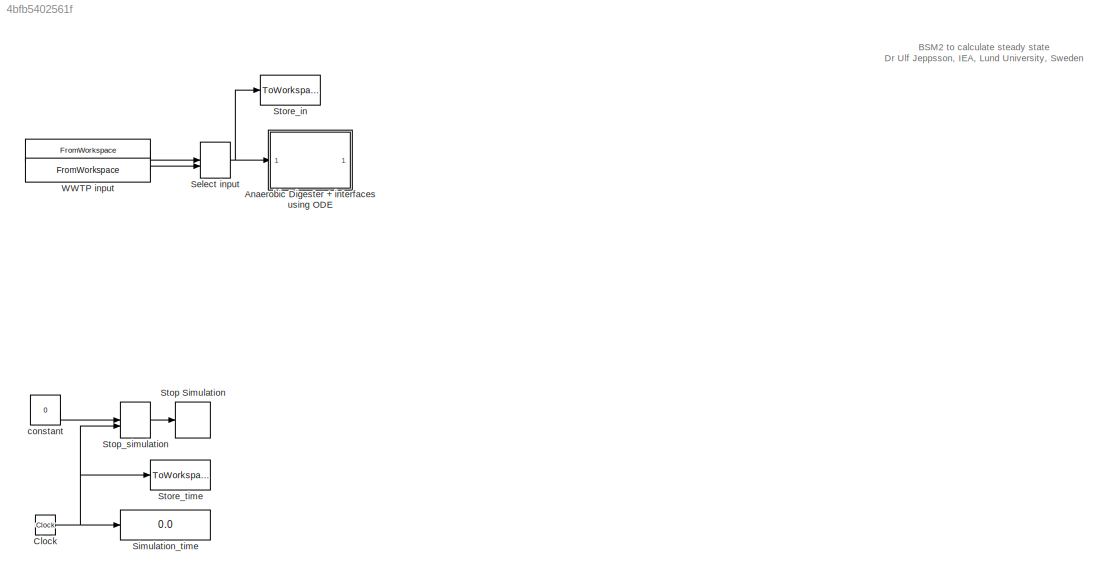
MODEL slx_4bfb5402561f
KIND model
CONFIG AbsTol = 1e-8
CONFIG EnableMultiTasking = off
CONFIG FixedStep = 0.01
CONFIG MaxStep = auto
CONFIG MinStep = auto
CONFIG RelTol = 1e-5
CONFIG SampleTimeConstraint = Unconstrained
CONFIG SolverName = ode15s
CONFIG StartTime = 0.0
CONFIG StopTime = 200
BLOCK [FromWorkspace]  
  OutputAfterFinalValue = Holding final value
  SampleTime = -1
  VariableName = CONSTINFLUENT_ADM1_TEST
  ZeroCross = off
BLOCK [Constant]  constant
  Value = 0
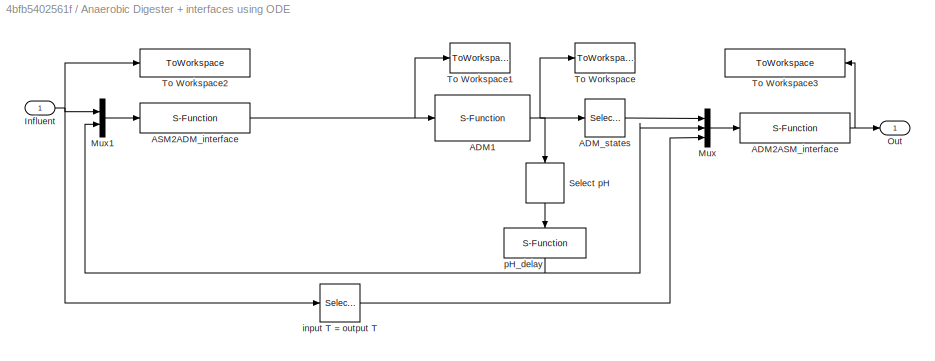
BLOCK [SubSystem] Anaerobic Digester + interfaces using ODE
BLOCK [S-Function] Anaerobic Digester + interfaces using ODE/ADM1
  EnableBusSupport = off
  FunctionName = adm1_ODE_bsm2
  Parameters = DIGESTERINIT, DIGESTERPAR, DIM_D
  SFcnIsStateOwnerBlock = off
  SFunctionDeploymentMode = off
BLOCK [S-Function] Anaerobic Digester + interfaces using ODE/ADM2ASM_interface
  EnableBusSupport = off
  FunctionName = adm2asm_v3_bsm2
  Parameters = INTERFACEPAR
  SFcnIsStateOwnerBlock = off
  SFunctionDeploymentMode = off
BLOCK [Selector] Anaerobic Digester + interfaces using ODE/ADM_states
  IndexOptions = Index vector (dialog)
  Indices = [1:33]
  InputPortWidth = 51
  OutputSizes = 1
BLOCK [S-Function] Anaerobic Digester + interfaces using ODE/ASM2ADM_interface
  EnableBusSupport = off
  FunctionName = asm2adm_v3_bsm2
  Parameters = INTERFACEPAR
  SFcnIsStateOwnerBlock = off
  SFunctionDeploymentMode = off
BLOCK [Inport] Anaerobic Digester + interfaces using ODE/Influent
BLOCK [Mux] Anaerobic Digester + interfaces using ODE/Mux
  DisplayOption = bar
  Inputs = 3
BLOCK [Mux] Anaerobic Digester + interfaces using ODE/Mux1
  DisplayOption = bar
  Inputs = 2
BLOCK [Outport] Anaerobic Digester + interfaces using ODE/Out
BLOCK [Selector] Anaerobic Digester + interfaces using ODE/Select pH
  IndexOptions = Index vector (dialog)
  Indices = [34]
  InputPortWidth = 51
  NameLocation = left
  OutputSizes = 1
BLOCK [ToWorkspace] Anaerobic Digester + interfaces using ODE/To Workspace
  MaxDataPoints = inf
  VariableName = digesterout
BLOCK [ToWorkspace] Anaerobic Digester + interfaces using ODE/To Workspace1
  MaxDataPoints = inf
  VariableName = digesterin
BLOCK [ToWorkspace] Anaerobic Digester + interfaces using ODE/To Workspace2
  MaxDataPoints = inf
  VariableName = digesterinpreinterface
BLOCK [ToWorkspace] Anaerobic Digester + interfaces using ODE/To Workspace3
  MaxDataPoints = inf
  VariableName = digesteroutpostinterface
BLOCK [Selector] Anaerobic Digester + interfaces using ODE/input T = output T
  IndexOptions = Index vector (dialog)
  Indices = [16]
  InputPortWidth = 21
  OutputSizes = 1
BLOCK [S-Function] Anaerobic Digester + interfaces using ODE/pH_delay
  EnableBusSupport = off
  FunctionName = pHdelay_bsm2
  NameLocation = left
  Parameters = PHINIT, PHTIMECONST
  SFcnIsStateOwnerBlock = off
  SFunctionDeploymentMode = off
BLOCK [Clock] Clock
BLOCK [ManualSwitch] Select input
BLOCK [Display] Simulation_time
  Decimation = 1
BLOCK [Stop] Stop Simulation
BLOCK [ManualSwitch] Stop_simulation
BLOCK [ToWorkspace] Store_in
  MaxDataPoints = inf
  VariableName = in
BLOCK [ToWorkspace] Store_time
  MaxDataPoints = inf
  VariableName = time
BLOCK [FromWorkspace] WWTP input
  OutputAfterFinalValue = Holding final value
  SampleTime = -1
  VariableName = DYNSLUDGE_BSM2
  ZeroCross = off
ANNOTATION (root): BSM2 to calculate steady state Dr Ulf Jeppsson, IEA, Lund University, Sweden
LINE  :1 -> Select input:1
LINE  constant:1 -> Stop_simulation:1
NET Anaerobic Digester + interfaces using ODE/ADM1:1 -> Anaerobic Digester + interfaces using ODE/ADM_states:1, Anaerobic Digester + interfaces using ODE/Select pH:1, Anaerobic Digester + interfaces using ODE/To Workspace:1
NET Anaerobic Digester + interfaces using ODE/ADM2ASM_interface:1 -> Anaerobic Digester + interfaces using ODE/Out:1, Anaerobic Digester + interfaces using ODE/To Workspace3:1
LINE Anaerobic Digester + interfaces using ODE/ADM_states:1 -> Anaerobic Digester + interfaces using ODE/Mux:1
NET Anaerobic Digester + interfaces using ODE/ASM2ADM_interface:1 -> Anaerobic Digester + interfaces using ODE/ADM1:1, Anaerobic Digester + interfaces using ODE/To Workspace1:1
NET Anaerobic Digester + interfaces using ODE/Influent:1 -> Anaerobic Digester + interfaces using ODE/Mux1:1, Anaerobic Digester + interfaces using ODE/To Workspace2:1, Anaerobic Digester + interfaces using ODE/input T = output T:1
LINE Anaerobic Digester + interfaces using ODE/Mux1:1 -> Anaerobic Digester + interfaces using ODE/ASM2ADM_interface:1
LINE Anaerobic Digester + interfaces using ODE/Mux:1 -> Anaerobic Digester + interfaces using ODE/ADM2ASM_interface:1
LINE Anaerobic Digester + interfaces using ODE/Select pH:1 -> Anaerobic Digester + interfaces using ODE/pH_delay:1
LINE Anaerobic Digester + interfaces using ODE/input T = output T:1 -> Anaerobic Digester + interfaces using ODE/Mux:3
NET Anaerobic Digester + interfaces using ODE/pH_delay:1 -> Anaerobic Digester + interfaces using ODE/Mux1:2, Anaerobic Digester + interfaces using ODE/Mux:2
NET Clock:1 -> Simulation_time:1, Stop_simulation:2, Store_time:1
NET Select input:1 -> Anaerobic Digester + interfaces using ODE:1, Store_in:1
LINE Stop_simulation:1 -> Stop Simulation:1
LINE WWTP input:1 -> Select input:2
note: NET lines group one-source signal fan-out (src -> all destinations, sorted); 1:1 wires keep LINE
